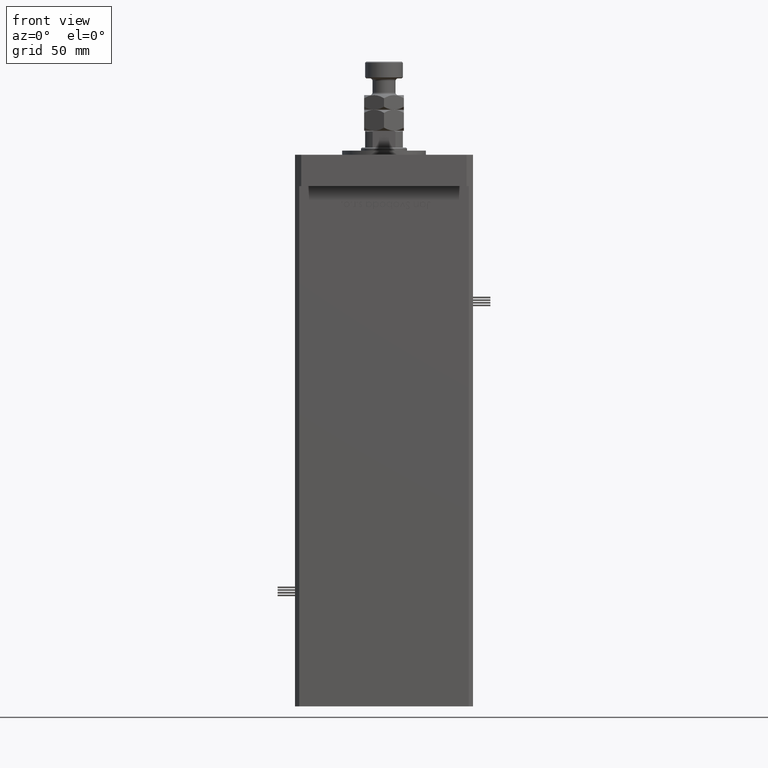
[diagram: clean part render]
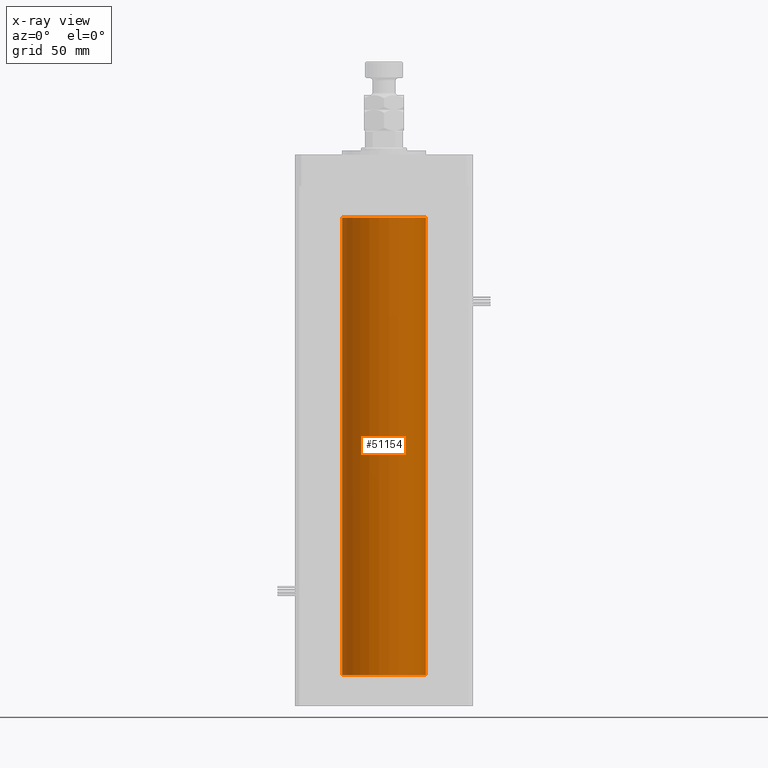
[diagram: x-ray — body ghosted, one internal face saturated and labeled with its STEP entity id]
A machine part, front view, then the same camera in x-ray: the body is ghosted and one INTERNAL B-rep face — a face not visible from any outside direction — is saturated and labeled: STEP entity #51154.
In plain terms, the highlighted cylindrical surface (partial cylindrical patch) has radius 20 mm, axis along (-0, -0, -1).
Its self-contained STEP definition (entity closure, byte-faithful):
#1284 = EDGE_CURVE ( 'NONE', #22635, #20988, #32884, .T. ) ;
#4056 = CARTESIAN_POINT ( 'NONE',  ( -20.00000000000000000, 0.000000000000000000, 218.5000000000000000 ) ) ;
#5712 = VERTEX_POINT ( 'NONE', #37759 ) ;
#9682 = CARTESIAN_POINT ( 'NONE',  ( 20.00000000000000000, 2.449293598294706513E-15, 218.5000000000000000 ) ) ;
#12528 = ORIENTED_EDGE ( 'NONE', *, *, #16709, .F. ) ;
#16134 = VERTEX_POINT ( 'NONE', #52628 ) ;
#16709 = EDGE_CURVE ( 'NONE', #22635, #5712, #35022, .T. ) ;
#16961 = DIRECTION ( 'NONE',  ( -0.000000000000000000, 0.000000000000000000, 1.000000000000000000 ) ) ;
#17989 = VECTOR ( 'NONE', #42483, 1000.000000000000000 ) ;
#18150 = DIRECTION ( 'NONE',  ( -0.000000000000000000, -0.000000000000000000, -1.000000000000000000 ) ) ;
#20988 = VERTEX_POINT ( 'NONE', #9682 ) ;
#21572 = AXIS2_PLACEMENT_3D ( 'NONE', #48787, #18150, #30806 ) ;
#22264 = FACE_OUTER_BOUND ( 'NONE', #31886, .T. ) ;
#22635 = VERTEX_POINT ( 'NONE', #4056 ) ;
#23519 = EDGE_CURVE ( 'NONE', #5712, #16134, #56262, .T. ) ;
#24497 = CARTESIAN_POINT ( 'NONE',  ( 20.00000000000000000, 2.449293598294706513E-15, 218.5000000000000000 ) ) ;
#24621 = DIRECTION ( 'NONE',  ( -0.000000000000000000, 0.000000000000000000, 1.000000000000000000 ) ) ;
#24905 = CARTESIAN_POINT ( 'NONE',  ( 0.000000000000000000, 0.000000000000000000, 218.5000000000000000 ) ) ;
#25858 = DIRECTION ( 'NONE',  ( -0.000000000000000000, -0.000000000000000000, -1.000000000000000000 ) ) ;
#27124 = ORIENTED_EDGE ( 'NONE', *, *, #23519, .F. ) ;
#27710 = VECTOR ( 'NONE', #25858, 1000.000000000000000 ) ;
#29628 = DIRECTION ( 'NONE',  ( 1.000000000000000000, 0.000000000000000000, 0.000000000000000000 ) ) ;
#30806 = DIRECTION ( 'NONE',  ( -1.000000000000000000, 0.000000000000000000, 0.000000000000000000 ) ) ;
#31886 = EDGE_LOOP ( 'NONE', ( #53016, #47718, #27124, #12528 ) ) ;
#32884 = CIRCLE ( 'NONE', #35697, 20.00000000000000000 ) ;
#33345 = LINE ( 'NONE', #24497, #17989 ) ;
#34363 = EDGE_CURVE ( 'NONE', #20988, #16134, #33345, .T. ) ;
#35022 = LINE ( 'NONE', #47703, #27710 ) ;
#35471 = DIRECTION ( 'NONE',  ( 1.000000000000000000, 0.000000000000000000, 0.000000000000000000 ) ) ;
#35697 = AXIS2_PLACEMENT_3D ( 'NONE', #24905, #24621, #29628 ) ;
#37759 = CARTESIAN_POINT ( 'NONE',  ( -20.00000000000000000, 0.000000000000000000, 0.000000000000000000 ) ) ;
#42483 = DIRECTION ( 'NONE',  ( -0.000000000000000000, -0.000000000000000000, -1.000000000000000000 ) ) ;
#47703 = CARTESIAN_POINT ( 'NONE',  ( -20.00000000000000000, 0.000000000000000000, 218.5000000000000000 ) ) ;
#47718 = ORIENTED_EDGE ( 'NONE', *, *, #34363, .T. ) ;
#48787 = CARTESIAN_POINT ( 'NONE',  ( 0.000000000000000000, 0.000000000000000000, 218.5000000000000000 ) ) ;
#51154 = ADVANCED_FACE ( 'NONE', ( #22264 ), #57931, .F. ) ;
#52628 = CARTESIAN_POINT ( 'NONE',  ( 20.00000000000000000, 2.449293598294706513E-15, 0.000000000000000000 ) ) ;
#53016 = ORIENTED_EDGE ( 'NONE', *, *, #1284, .T. ) ;
#53441 = AXIS2_PLACEMENT_3D ( 'NONE', #53460, #16961, #35471 ) ;
#53460 = CARTESIAN_POINT ( 'NONE',  ( 0.000000000000000000, 0.000000000000000000, 0.000000000000000000 ) ) ;
#56262 = CIRCLE ( 'NONE', #53441, 20.00000000000000000 ) ;
#57931 = CYLINDRICAL_SURFACE ( 'NONE', #21572, 20.00000000000000000 ) ;